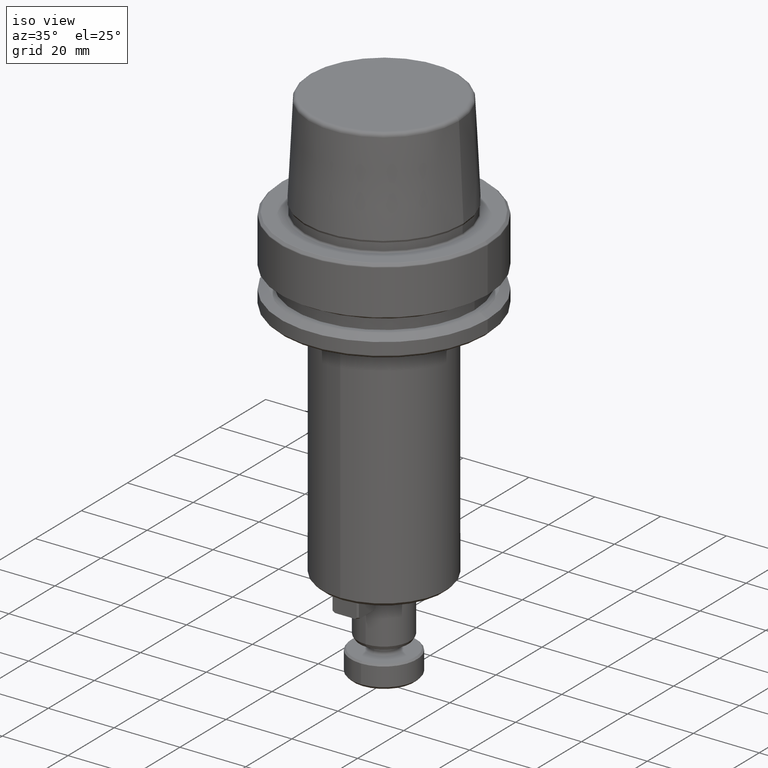
[diagram: clean part render]
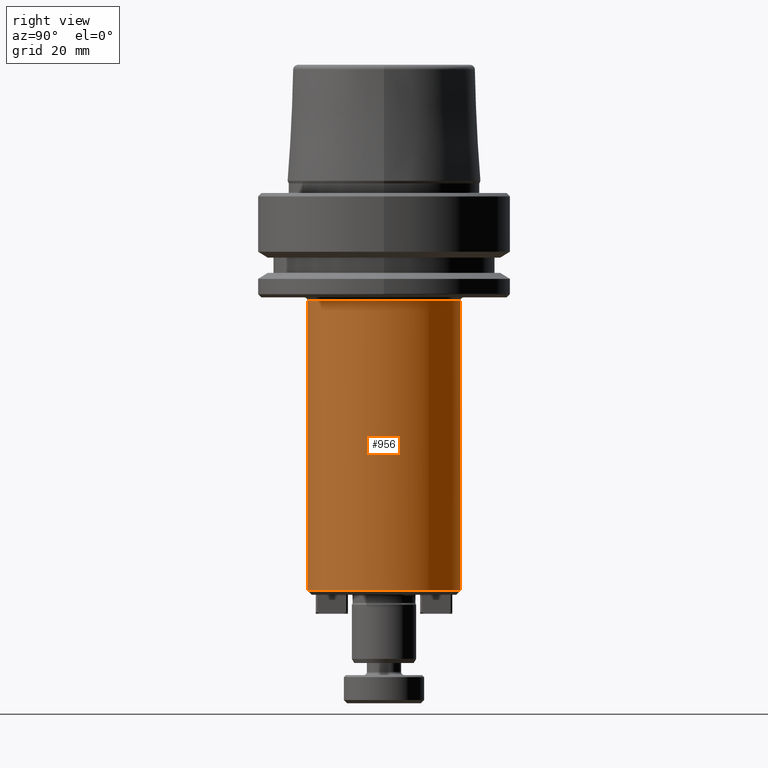
[diagram: tour spotlight — one face highlighted and labeled with its STEP entity id]
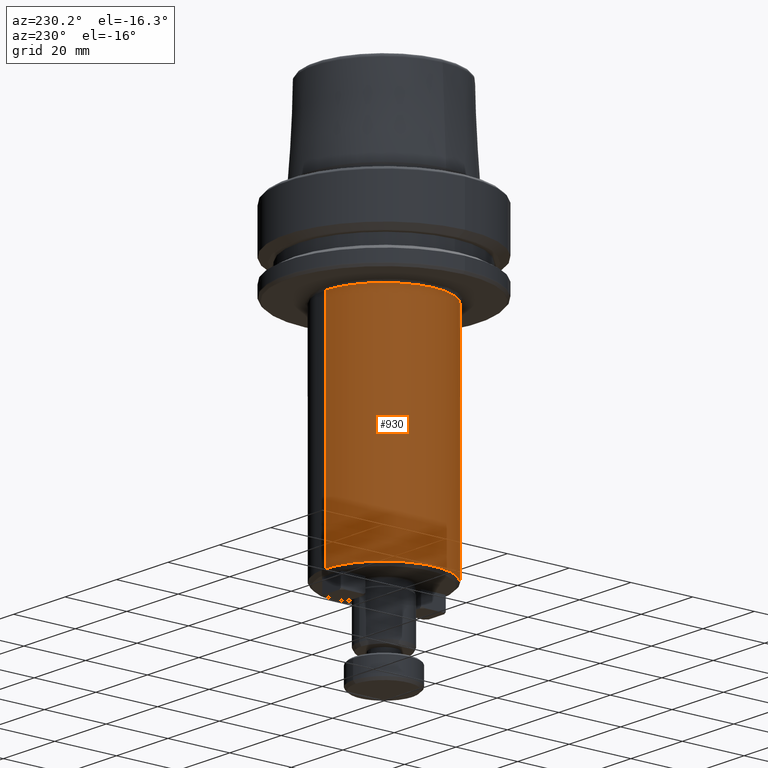
[diagram: tour spotlight — one face highlighted and labeled with its STEP entity id]
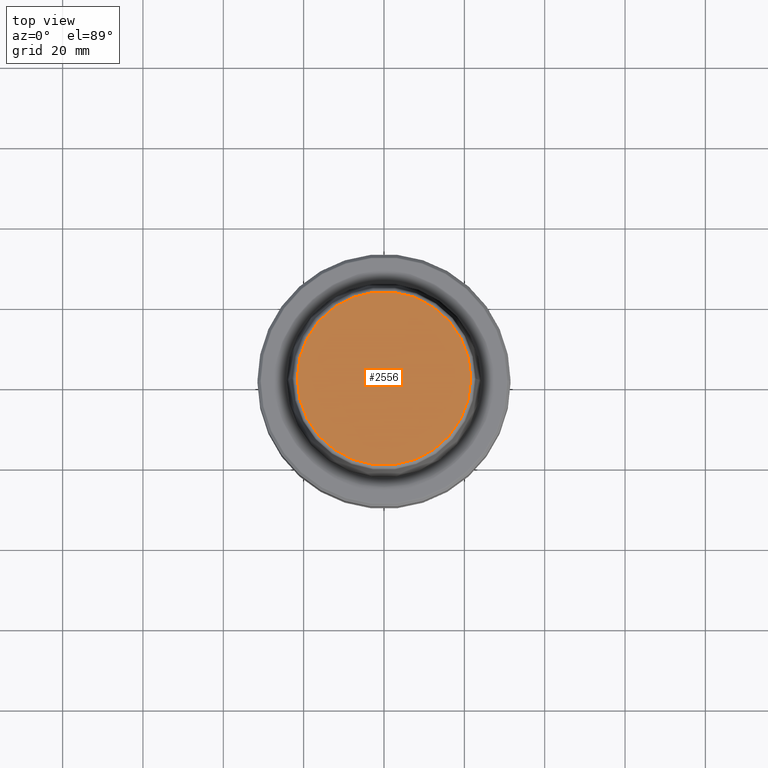
[diagram: tour spotlight — one face highlighted and labeled with its STEP entity id]
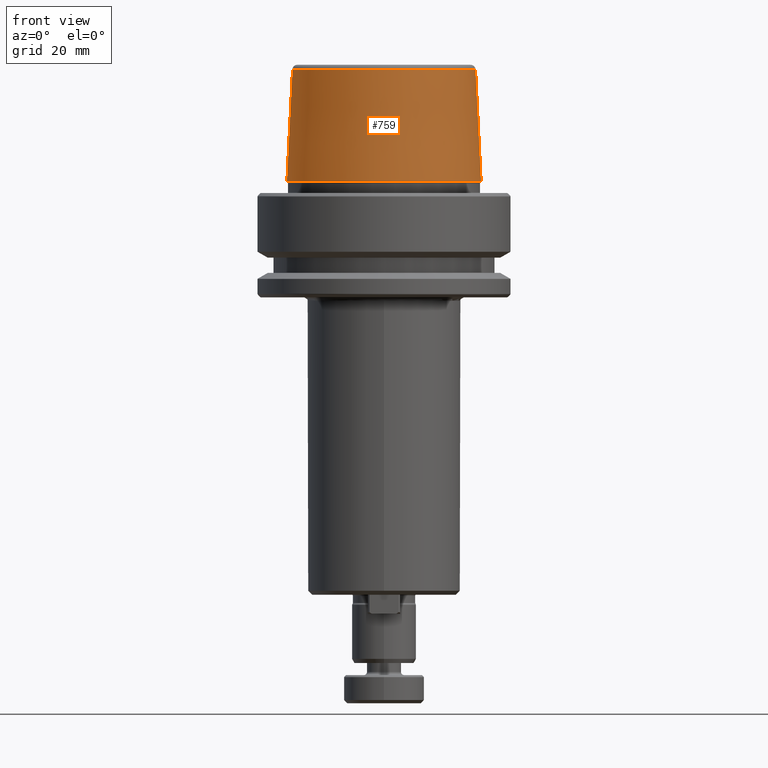
[diagram: tour spotlight — one face highlighted and labeled with its STEP entity id]
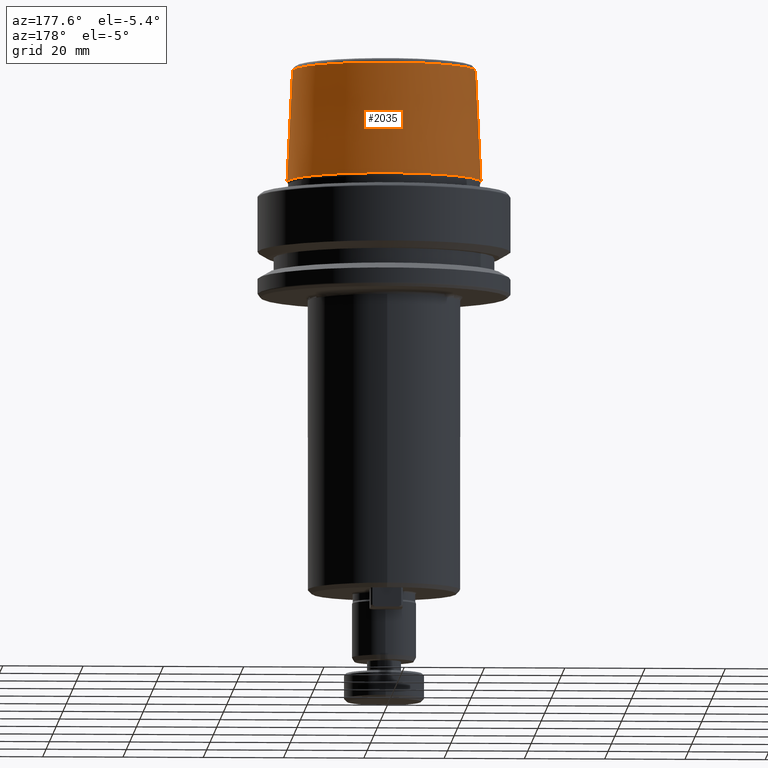
[diagram: tour spotlight — one face highlighted and labeled with its STEP entity id]
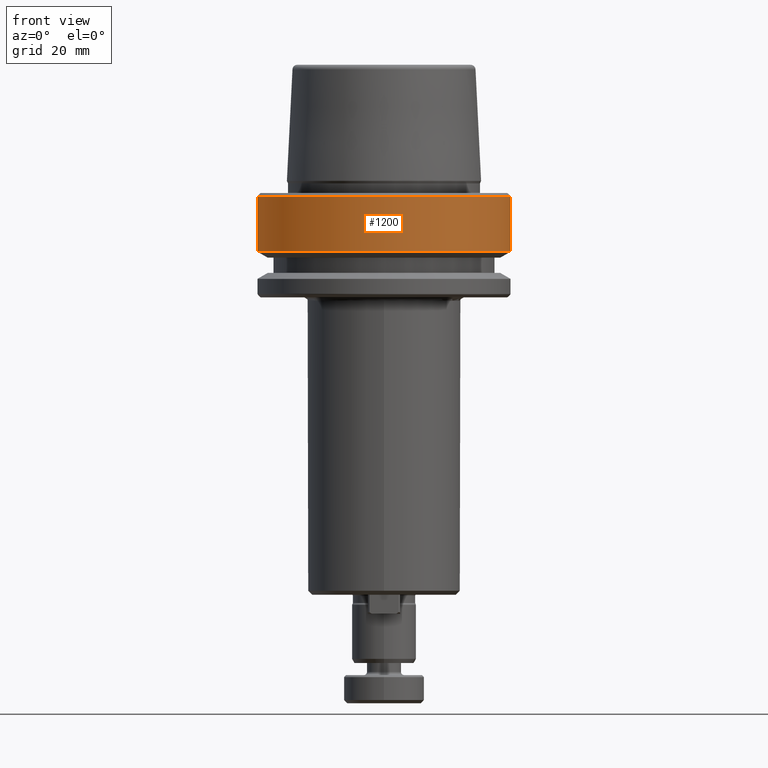
[diagram: tour spotlight — one face highlighted and labeled with its STEP entity id]
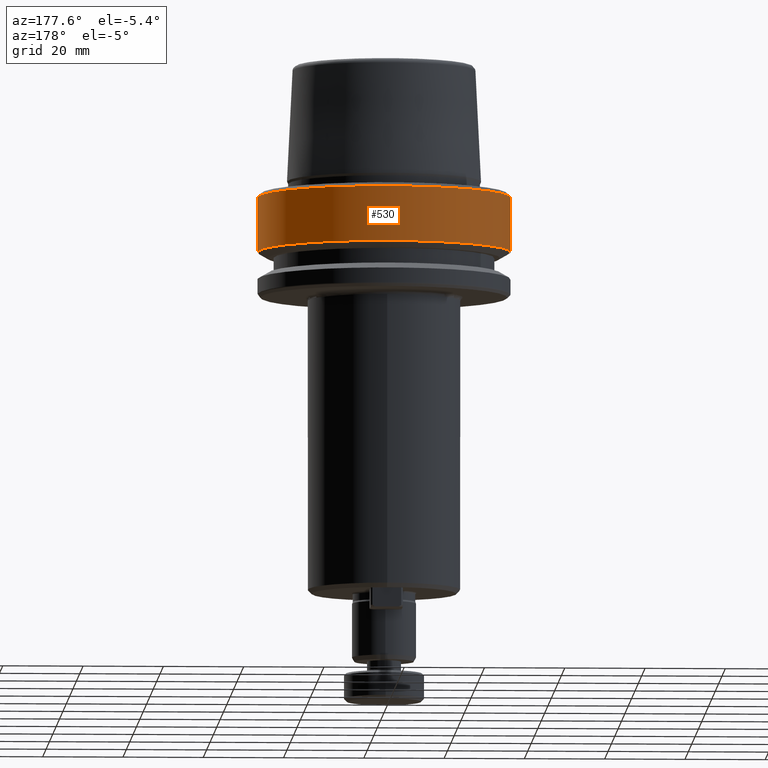
[diagram: tour spotlight — one face highlighted and labeled with its STEP entity id]
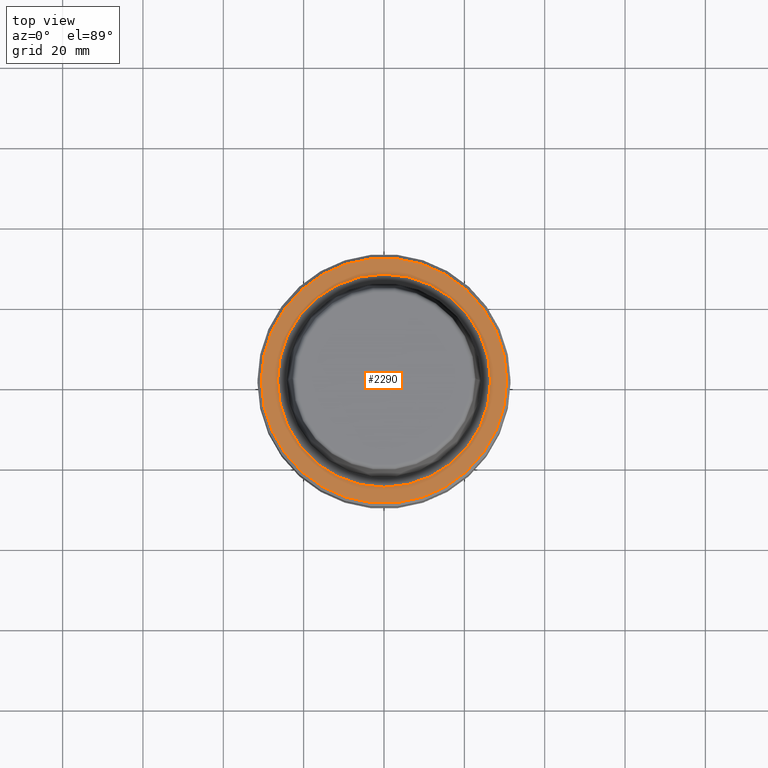
[diagram: tour spotlight — one face highlighted and labeled with its STEP entity id]
A machine part: a face-by-face anatomy tour. The part has 99 B-rep faces; the first image is the clean iso view, then the 8 largest visible faces are spotlighted one at a time (largest first), each with its STEP entity span.

Face 1 — right view, entity #956. In plain terms, the highlighted cylindrical surface (partial cylindrical patch) has radius 19 mm, axis along (-0, 0, -1).
Definition (entity closure, byte-faithful):
#64 = CARTESIAN_POINT ( 'NONE',  ( 0.0000000000000000000, 19.00000000000000700, -117.0000000000000000 ) ) ;
#116 = ORIENTED_EDGE ( 'NONE', *, *, #2378, .T. ) ;
#162 = CIRCLE ( 'NONE', #2687, 19.00000000000000000 ) ;
#195 = EDGE_CURVE ( 'NONE', #1346, #249, #162, .T. ) ;
#249 = VERTEX_POINT ( 'NONE', #2596 ) ;
#400 = VERTEX_POINT ( 'NONE', #1212 ) ;
#422 = AXIS2_PLACEMENT_3D ( 'NONE', #2175, #2057, #2455 ) ;
#434 = DIRECTION ( 'NONE',  ( -0.0000000000000000000, 7.401711423418070600E-017, -1.000000000000000000 ) ) ;
#507 = ORIENTED_EDGE ( 'NONE', *, *, #540, .F. ) ;
#540 = EDGE_CURVE ( 'NONE', #400, #1538, #2073, .T. ) ;
#757 = DIRECTION ( 'NONE',  ( -0.0000000000000000000, 7.401711423418070600E-017, -1.000000000000000000 ) ) ;
#765 = CIRCLE ( 'NONE', #1809, 19.00000000000000000 ) ;
#766 = EDGE_CURVE ( 'NONE', #2383, #1346, #765, .T. ) ;
#768 = CARTESIAN_POINT ( 'NONE',  ( 2.326828918379971000E-015, -18.99999999999999300, -117.0000000000000000 ) ) ;
#882 = VECTOR ( 'NONE', #757, 1000.000000000000000 ) ;
#946 = LINE ( 'NONE', #768, #882 ) ;
#956 = ADVANCED_FACE ( 'NONE', ( #2681 ), #2578, .T. ) ;
#985 = CARTESIAN_POINT ( 'NONE',  ( 0.0000000000000000000, 19.00000000000000000, -26.80000000000000400 ) ) ;
#1167 = VECTOR ( 'NONE', #1388, 1000.000000000000000 ) ;
#1212 = CARTESIAN_POINT ( 'NONE',  ( 0.0000000000000000000, 19.00000000000000700, -98.99999999999998600 ) ) ;
#1280 = CARTESIAN_POINT ( 'NONE',  ( 0.0000000000000000000, 5.921369138734457200E-017, -26.80000000000000400 ) ) ;
#1308 = EDGE_CURVE ( 'NONE', #2383, #400, #2330, .T. ) ;
#1346 = VERTEX_POINT ( 'NONE', #2435 ) ;
#1388 = DIRECTION ( 'NONE',  ( -0.0000000000000000000, 7.401711423418070600E-017, -1.000000000000000000 ) ) ;
#1508 = DIRECTION ( 'NONE',  ( 1.000000000000000000, 0.0000000000000000000, 0.0000000000000000000 ) ) ;
#1538 = VERTEX_POINT ( 'NONE', #2768 ) ;
#1569 = EDGE_LOOP ( 'NONE', ( #2266, #2505, #116, #507, #2520 ) ) ;
#1809 = AXIS2_PLACEMENT_3D ( 'NONE', #1280, #2592, #1508 ) ;
#1906 = DIRECTION ( 'NONE',  ( 1.000000000000000000, 0.0000000000000000000, 0.0000000000000000000 ) ) ;
#1990 = DIRECTION ( 'NONE',  ( 0.0000000000000000000, 1.000000000000000000, 0.0000000000000000000 ) ) ;
#2057 = DIRECTION ( 'NONE',  ( -0.0000000000000000000, 7.401711423418070600E-017, -1.000000000000000000 ) ) ;
#2073 = CIRCLE ( 'NONE', #422, 19.00000000000000000 ) ;
#2175 = CARTESIAN_POINT ( 'NONE',  ( 0.0000000000000000000, 5.403249339095191200E-015, -98.99999999999998600 ) ) ;
#2213 = CARTESIAN_POINT ( 'NONE',  ( 0.0000000000000000000, 6.735557395310445000E-015, -117.0000000000000000 ) ) ;
#2266 = ORIENTED_EDGE ( 'NONE', *, *, #766, .T. ) ;
#2330 = LINE ( 'NONE', #64, #1167 ) ;
#2378 = EDGE_CURVE ( 'NONE', #249, #1538, #946, .T. ) ;
#2383 = VERTEX_POINT ( 'NONE', #985 ) ;
#2386 = CARTESIAN_POINT ( 'NONE',  ( 0.0000000000000000000, 5.921369138734457200E-017, -26.80000000000000400 ) ) ;
#2435 = CARTESIAN_POINT ( 'NONE',  ( 19.00000000000000000, 5.921369138734457200E-017, -26.80000000000000400 ) ) ;
#2455 = DIRECTION ( 'NONE',  ( 0.0000000000000000000, 1.000000000000000000, 0.0000000000000000000 ) ) ;
#2505 = ORIENTED_EDGE ( 'NONE', *, *, #195, .T. ) ;
#2509 = AXIS2_PLACEMENT_3D ( 'NONE', #2213, #434, #1990 ) ;
#2520 = ORIENTED_EDGE ( 'NONE', *, *, #1308, .F. ) ;
#2578 = CYLINDRICAL_SURFACE ( 'NONE', #2509, 19.00000000000000000 ) ;
#2592 = DIRECTION ( 'NONE',  ( 0.0000000000000000000, 0.0000000000000000000, -1.000000000000000000 ) ) ;
#2596 = CARTESIAN_POINT ( 'NONE',  ( 2.326828918379971400E-015, -19.00000000000000000, -26.80000000000000400 ) ) ;
#2681 = FACE_OUTER_BOUND ( 'NONE', #1569, .T. ) ;
#2687 = AXIS2_PLACEMENT_3D ( 'NONE', #2386, #2802, #1906 ) ;
#2768 = CARTESIAN_POINT ( 'NONE',  ( 2.326828918379971000E-015, -18.99999999999999300, -98.99999999999998600 ) ) ;
#2802 = DIRECTION ( 'NONE',  ( 0.0000000000000000000, 0.0000000000000000000, -1.000000000000000000 ) ) ;

Face 2 — auxiliary view, entity #930. In plain terms, the highlighted cylindrical surface (partial cylindrical patch) has radius 19 mm, axis along (-0, 0, -1).
Definition (entity closure, byte-faithful):
#64 = CARTESIAN_POINT ( 'NONE',  ( 0.0000000000000000000, 19.00000000000000700, -117.0000000000000000 ) ) ;
#103 = VERTEX_POINT ( 'NONE', #229 ) ;
#183 = ORIENTED_EDGE ( 'NONE', *, *, #1913, .T. ) ;
#211 = DIRECTION ( 'NONE',  ( 1.000000000000000000, 0.0000000000000000000, 0.0000000000000000000 ) ) ;
#223 = AXIS2_PLACEMENT_3D ( 'NONE', #1784, #494, #2004 ) ;
#229 = CARTESIAN_POINT ( 'NONE',  ( -19.00000000000000000, 2.435028481733209800E-015, -26.80000000000000400 ) ) ;
#249 = VERTEX_POINT ( 'NONE', #2596 ) ;
#375 = EDGE_LOOP ( 'NONE', ( #810, #183, #2608, #451, #1386 ) ) ;
#397 = CIRCLE ( 'NONE', #1208, 19.00000000000000000 ) ;
#400 = VERTEX_POINT ( 'NONE', #1212 ) ;
#451 = ORIENTED_EDGE ( 'NONE', *, *, #1308, .T. ) ;
#469 = CIRCLE ( 'NONE', #1225, 19.00000000000000000 ) ;
#494 = DIRECTION ( 'NONE',  ( 0.0000000000000000000, 0.0000000000000000000, -1.000000000000000000 ) ) ;
#757 = DIRECTION ( 'NONE',  ( -0.0000000000000000000, 7.401711423418070600E-017, -1.000000000000000000 ) ) ;
#768 = CARTESIAN_POINT ( 'NONE',  ( 2.326828918379971000E-015, -18.99999999999999300, -117.0000000000000000 ) ) ;
#810 = ORIENTED_EDGE ( 'NONE', *, *, #2378, .F. ) ;
#882 = VECTOR ( 'NONE', #757, 1000.000000000000000 ) ;
#892 = DIRECTION ( 'NONE',  ( -0.0000000000000000000, 7.401711423418070600E-017, -1.000000000000000000 ) ) ;
#930 = ADVANCED_FACE ( 'NONE', ( #1007 ), #2094, .T. ) ;
#946 = LINE ( 'NONE', #768, #882 ) ;
#985 = CARTESIAN_POINT ( 'NONE',  ( 0.0000000000000000000, 19.00000000000000000, -26.80000000000000400 ) ) ;
#1007 = FACE_OUTER_BOUND ( 'NONE', #375, .T. ) ;
#1167 = VECTOR ( 'NONE', #1388, 1000.000000000000000 ) ;
#1208 = AXIS2_PLACEMENT_3D ( 'NONE', #2800, #1492, #211 ) ;
#1212 = CARTESIAN_POINT ( 'NONE',  ( 0.0000000000000000000, 19.00000000000000700, -98.99999999999998600 ) ) ;
#1225 = AXIS2_PLACEMENT_3D ( 'NONE', #2422, #892, #2200 ) ;
#1299 = CARTESIAN_POINT ( 'NONE',  ( 0.0000000000000000000, 6.735557395310445000E-015, -117.0000000000000000 ) ) ;
#1308 = EDGE_CURVE ( 'NONE', #2383, #400, #2330, .T. ) ;
#1386 = ORIENTED_EDGE ( 'NONE', *, *, #1394, .F. ) ;
#1388 = DIRECTION ( 'NONE',  ( -0.0000000000000000000, 7.401711423418070600E-017, -1.000000000000000000 ) ) ;
#1394 = EDGE_CURVE ( 'NONE', #1538, #400, #469, .T. ) ;
#1492 = DIRECTION ( 'NONE',  ( 0.0000000000000000000, 0.0000000000000000000, -1.000000000000000000 ) ) ;
#1538 = VERTEX_POINT ( 'NONE', #2768 ) ;
#1773 = AXIS2_PLACEMENT_3D ( 'NONE', #1299, #2576, #2180 ) ;
#1784 = CARTESIAN_POINT ( 'NONE',  ( 0.0000000000000000000, 5.921369138734457200E-017, -26.80000000000000400 ) ) ;
#1913 = EDGE_CURVE ( 'NONE', #249, #103, #397, .T. ) ;
#2004 = DIRECTION ( 'NONE',  ( 1.000000000000000000, 0.0000000000000000000, 0.0000000000000000000 ) ) ;
#2094 = CYLINDRICAL_SURFACE ( 'NONE', #1773, 19.00000000000000000 ) ;
#2098 = CIRCLE ( 'NONE', #223, 19.00000000000000000 ) ;
#2180 = DIRECTION ( 'NONE',  ( 0.0000000000000000000, 1.000000000000000000, 0.0000000000000000000 ) ) ;
#2200 = DIRECTION ( 'NONE',  ( 0.0000000000000000000, 1.000000000000000000, 0.0000000000000000000 ) ) ;
#2330 = LINE ( 'NONE', #64, #1167 ) ;
#2378 = EDGE_CURVE ( 'NONE', #249, #1538, #946, .T. ) ;
#2383 = VERTEX_POINT ( 'NONE', #985 ) ;
#2422 = CARTESIAN_POINT ( 'NONE',  ( 0.0000000000000000000, 5.403249339095191200E-015, -98.99999999999998600 ) ) ;
#2576 = DIRECTION ( 'NONE',  ( -0.0000000000000000000, 7.401711423418070600E-017, -1.000000000000000000 ) ) ;
#2596 = CARTESIAN_POINT ( 'NONE',  ( 2.326828918379971400E-015, -19.00000000000000000, -26.80000000000000400 ) ) ;
#2608 = ORIENTED_EDGE ( 'NONE', *, *, #2765, .T. ) ;
#2765 = EDGE_CURVE ( 'NONE', #103, #2383, #2098, .T. ) ;
#2768 = CARTESIAN_POINT ( 'NONE',  ( 2.326828918379971000E-015, -18.99999999999999300, -98.99999999999998600 ) ) ;
#2800 = CARTESIAN_POINT ( 'NONE',  ( 0.0000000000000000000, 5.921369138734457200E-017, -26.80000000000000400 ) ) ;

Face 3 — top view, entity #2556. In plain terms, the highlighted planar face has unit normal (0, 0, -1).
Definition (entity closure, byte-faithful):
#14 = DIRECTION ( 'NONE',  ( -0.0000000000000000000, -0.0000000000000000000, 1.000000000000000000 ) ) ;
#97 = FACE_OUTER_BOUND ( 'NONE', #869, .T. ) ;
#582 = DIRECTION ( 'NONE',  ( -0.0000000000000000000, -0.0000000000000000000, 1.000000000000000000 ) ) ;
#597 = ORIENTED_EDGE ( 'NONE', *, *, #804, .T. ) ;
#610 = DIRECTION ( 'NONE',  ( 0.0000000000000000000, 0.0000000000000000000, -1.000000000000000000 ) ) ;
#619 = DIRECTION ( 'NONE',  ( -1.000000000000000000, 0.0000000000000000000, -0.0000000000000000000 ) ) ;
#628 = CIRCLE ( 'NONE', #846, 21.58108272732117100 ) ;
#685 = AXIS2_PLACEMENT_3D ( 'NONE', #1702, #610, #619 ) ;
#702 = CIRCLE ( 'NONE', #2398, 21.58108272732117100 ) ;
#804 = EDGE_CURVE ( 'NONE', #2253, #2667, #702, .T. ) ;
#846 = AXIS2_PLACEMENT_3D ( 'NONE', #2356, #14, #1303 ) ;
#865 = CARTESIAN_POINT ( 'NONE',  ( -21.58108272732117100, 2.716307157494421400E-015, 31.89999999999999900 ) ) ;
#869 = EDGE_LOOP ( 'NONE', ( #597, #1221 ) ) ;
#1053 = CARTESIAN_POINT ( 'NONE',  ( 0.0000000000000000000, 0.0000000000000000000, 31.89999999999999900 ) ) ;
#1105 = EDGE_CURVE ( 'NONE', #2667, #2253, #628, .T. ) ;
#1221 = ORIENTED_EDGE ( 'NONE', *, *, #1105, .T. ) ;
#1303 = DIRECTION ( 'NONE',  ( 1.000000000000000000, 0.0000000000000000000, 0.0000000000000000000 ) ) ;
#1702 = CARTESIAN_POINT ( 'NONE',  ( 0.0000000000000000000, 0.0000000000000000000, 31.89999999999999900 ) ) ;
#1922 = PLANE ( 'NONE',  #685 ) ;
#2029 = CARTESIAN_POINT ( 'NONE',  ( 21.58108272732117100, 0.0000000000000000000, 31.89999999999999900 ) ) ;
#2134 = DIRECTION ( 'NONE',  ( 1.000000000000000000, 0.0000000000000000000, 0.0000000000000000000 ) ) ;
#2253 = VERTEX_POINT ( 'NONE', #2029 ) ;
#2356 = CARTESIAN_POINT ( 'NONE',  ( 0.0000000000000000000, 0.0000000000000000000, 31.89999999999999900 ) ) ;
#2398 = AXIS2_PLACEMENT_3D ( 'NONE', #1053, #582, #2134 ) ;
#2556 = ADVANCED_FACE ( 'NONE', ( #97 ), #1922, .F. ) ;
#2667 = VERTEX_POINT ( 'NONE', #865 ) ;

Face 4 — front view, entity #759. In plain terms, the highlighted conical surface has half-angle 2.868 deg.
Definition (entity closure, byte-faithful):
#94 = ORIENTED_EDGE ( 'NONE', *, *, #1486, .F. ) ;
#114 = CIRCLE ( 'NONE', #1568, 24.17032625081241900 ) ;
#141 = CARTESIAN_POINT ( 'NONE',  ( -24.17032625081241900, 2.960011267740467600E-015, 3.000000000000002700 ) ) ;
#143 = VERTEX_POINT ( 'NONE', #285 ) ;
#206 = DIRECTION ( 'NONE',  ( -0.05003611051310812000, 0.0000000000000000000, -0.9987474093306675200 ) ) ;
#220 = CARTESIAN_POINT ( 'NONE',  ( 0.0000000000000000000, 0.0000000000000000000, 3.000000000000002700 ) ) ;
#236 = VERTEX_POINT ( 'NONE', #1661 ) ;
#285 = CARTESIAN_POINT ( 'NONE',  ( 24.17032625081241900, 0.0000000000000000000, 3.000000000000002700 ) ) ;
#290 = DIRECTION ( 'NONE',  ( -0.0000000000000000000, -0.0000000000000000000, 1.000000000000000000 ) ) ;
#428 = CIRCLE ( 'NONE', #1590, 22.77957961851797100 ) ;
#572 = EDGE_CURVE ( 'NONE', #640, #143, #114, .T. ) ;
#595 = ORIENTED_EDGE ( 'NONE', *, *, #572, .T. ) ;
#640 = VERTEX_POINT ( 'NONE', #141 ) ;
#661 = VERTEX_POINT ( 'NONE', #1472 ) ;
#759 = ADVANCED_FACE ( 'NONE', ( #835 ), #2440, .T. ) ;
#816 = DIRECTION ( 'NONE',  ( -0.0000000000000000000, -0.0000000000000000000, 1.000000000000000000 ) ) ;
#828 = DIRECTION ( 'NONE',  ( 0.0000000000000000000, 0.0000000000000000000, -1.000000000000000000 ) ) ;
#835 = FACE_OUTER_BOUND ( 'NONE', #2336, .T. ) ;
#893 = LINE ( 'NONE', #2170, #1409 ) ;
#1310 = ORIENTED_EDGE ( 'NONE', *, *, #2181, .F. ) ;
#1409 = VECTOR ( 'NONE', #2377, 1000.000000000000200 ) ;
#1472 = CARTESIAN_POINT ( 'NONE',  ( -22.77957961851797100, 0.0000000000000000000, 30.76004333261571900 ) ) ;
#1486 = EDGE_CURVE ( 'NONE', #236, #143, #893, .T. ) ;
#1494 = VECTOR ( 'NONE', #206, 1000.000000000000200 ) ;
#1523 = AXIS2_PLACEMENT_3D ( 'NONE', #220, #828, #1889 ) ;
#1568 = AXIS2_PLACEMENT_3D ( 'NONE', #2344, #816, #2123 ) ;
#1579 = CARTESIAN_POINT ( 'NONE',  ( 0.0000000000000000000, 0.0000000000000000000, 30.76004333261571900 ) ) ;
#1590 = AXIS2_PLACEMENT_3D ( 'NONE', #1579, #290, #1795 ) ;
#1661 = CARTESIAN_POINT ( 'NONE',  ( 22.77957961851797100, 2.874852597157249900E-015, 30.76004333261571900 ) ) ;
#1748 = ORIENTED_EDGE ( 'NONE', *, *, #2560, .T. ) ;
#1795 = DIRECTION ( 'NONE',  ( 1.000000000000000000, 0.0000000000000000000, 0.0000000000000000000 ) ) ;
#1889 = DIRECTION ( 'NONE',  ( -1.000000000000000000, 0.0000000000000000000, 0.0000000000000000000 ) ) ;
#2123 = DIRECTION ( 'NONE',  ( 1.000000000000000000, 0.0000000000000000000, 0.0000000000000000000 ) ) ;
#2138 = CARTESIAN_POINT ( 'NONE',  ( -24.17032625081241900, 0.0000000000000000000, 3.000000000000002700 ) ) ;
#2170 = CARTESIAN_POINT ( 'NONE',  ( 24.17032625081241900, 2.960011267740467600E-015, 3.000000000000002700 ) ) ;
#2181 = EDGE_CURVE ( 'NONE', #661, #236, #428, .T. ) ;
#2216 = LINE ( 'NONE', #2138, #1494 ) ;
#2336 = EDGE_LOOP ( 'NONE', ( #94, #1310, #1748, #595 ) ) ;
#2344 = CARTESIAN_POINT ( 'NONE',  ( 0.0000000000000000000, 0.0000000000000000000, 3.000000000000002700 ) ) ;
#2377 = DIRECTION ( 'NONE',  ( 0.05003611051310812000, 6.127656258166108900E-018, -0.9987474093306675200 ) ) ;
#2440 = CONICAL_SURFACE ( 'NONE', #1523, 24.17032625081241900, 0.05005701257456005000 ) ;
#2560 = EDGE_CURVE ( 'NONE', #661, #640, #2216, .T. ) ;

Face 5 — auxiliary view, entity #2035. In plain terms, the highlighted conical surface has half-angle 2.868 deg.
Definition (entity closure, byte-faithful):
#15 = CARTESIAN_POINT ( 'NONE',  ( 0.0000000000000000000, 0.0000000000000000000, 3.000000000000002700 ) ) ;
#141 = CARTESIAN_POINT ( 'NONE',  ( -24.17032625081241900, 2.960011267740467600E-015, 3.000000000000002700 ) ) ;
#143 = VERTEX_POINT ( 'NONE', #285 ) ;
#206 = DIRECTION ( 'NONE',  ( -0.05003611051310812000, 0.0000000000000000000, -0.9987474093306675200 ) ) ;
#232 = AXIS2_PLACEMENT_3D ( 'NONE', #968, #2280, #961 ) ;
#236 = VERTEX_POINT ( 'NONE', #1661 ) ;
#285 = CARTESIAN_POINT ( 'NONE',  ( 24.17032625081241900, 0.0000000000000000000, 3.000000000000002700 ) ) ;
#465 = ORIENTED_EDGE ( 'NONE', *, *, #1437, .F. ) ;
#640 = VERTEX_POINT ( 'NONE', #141 ) ;
#641 = DIRECTION ( 'NONE',  ( 0.0000000000000000000, 0.0000000000000000000, -1.000000000000000000 ) ) ;
#661 = VERTEX_POINT ( 'NONE', #1472 ) ;
#700 = EDGE_CURVE ( 'NONE', #143, #640, #1046, .T. ) ;
#731 = ORIENTED_EDGE ( 'NONE', *, *, #700, .T. ) ;
#893 = LINE ( 'NONE', #2170, #1409 ) ;
#961 = DIRECTION ( 'NONE',  ( 1.000000000000000000, 0.0000000000000000000, 0.0000000000000000000 ) ) ;
#968 = CARTESIAN_POINT ( 'NONE',  ( 0.0000000000000000000, 0.0000000000000000000, 3.000000000000002700 ) ) ;
#1046 = CIRCLE ( 'NONE', #232, 24.17032625081241900 ) ;
#1193 = CONICAL_SURFACE ( 'NONE', #2080, 24.17032625081241900, 0.05005701257456005000 ) ;
#1263 = FACE_OUTER_BOUND ( 'NONE', #1966, .T. ) ;
#1409 = VECTOR ( 'NONE', #2377, 1000.000000000000200 ) ;
#1437 = EDGE_CURVE ( 'NONE', #236, #661, #2575, .T. ) ;
#1472 = CARTESIAN_POINT ( 'NONE',  ( -22.77957961851797100, 0.0000000000000000000, 30.76004333261571900 ) ) ;
#1486 = EDGE_CURVE ( 'NONE', #236, #143, #893, .T. ) ;
#1494 = VECTOR ( 'NONE', #206, 1000.000000000000200 ) ;
#1574 = ORIENTED_EDGE ( 'NONE', *, *, #1486, .T. ) ;
#1661 = CARTESIAN_POINT ( 'NONE',  ( 22.77957961851797100, 2.874852597157249900E-015, 30.76004333261571900 ) ) ;
#1733 = DIRECTION ( 'NONE',  ( -1.000000000000000000, 0.0000000000000000000, 0.0000000000000000000 ) ) ;
#1799 = DIRECTION ( 'NONE',  ( -0.0000000000000000000, -0.0000000000000000000, 1.000000000000000000 ) ) ;
#1966 = EDGE_LOOP ( 'NONE', ( #465, #1574, #731, #2279 ) ) ;
#2035 = ADVANCED_FACE ( 'NONE', ( #1263 ), #1193, .T. ) ;
#2080 = AXIS2_PLACEMENT_3D ( 'NONE', #15, #641, #1733 ) ;
#2138 = CARTESIAN_POINT ( 'NONE',  ( -24.17032625081241900, 0.0000000000000000000, 3.000000000000002700 ) ) ;
#2170 = CARTESIAN_POINT ( 'NONE',  ( 24.17032625081241900, 2.960011267740467600E-015, 3.000000000000002700 ) ) ;
#2216 = LINE ( 'NONE', #2138, #1494 ) ;
#2279 = ORIENTED_EDGE ( 'NONE', *, *, #2560, .F. ) ;
#2280 = DIRECTION ( 'NONE',  ( -0.0000000000000000000, -0.0000000000000000000, 1.000000000000000000 ) ) ;
#2377 = DIRECTION ( 'NONE',  ( 0.05003611051310812000, 6.127656258166108900E-018, -0.9987474093306675200 ) ) ;
#2442 = CARTESIAN_POINT ( 'NONE',  ( 0.0000000000000000000, 0.0000000000000000000, 30.76004333261571900 ) ) ;
#2552 = AXIS2_PLACEMENT_3D ( 'NONE', #2442, #1799, #2719 ) ;
#2560 = EDGE_CURVE ( 'NONE', #661, #640, #2216, .T. ) ;
#2575 = CIRCLE ( 'NONE', #2552, 22.77957961851797100 ) ;
#2719 = DIRECTION ( 'NONE',  ( 1.000000000000000000, 0.0000000000000000000, 0.0000000000000000000 ) ) ;

Face 6 — front view, entity #1200. In plain terms, the highlighted cylindrical surface (partial cylindrical patch) has radius 31.5 mm, axis along (-0, -0, 1).
Definition (entity closure, byte-faithful):
#112 = CARTESIAN_POINT ( 'NONE',  ( 31.50000000000000000, 0.0000000000000000000, 78.96908074195309300 ) ) ;
#133 = VERTEX_POINT ( 'NONE', #2522 ) ;
#200 = CIRCLE ( 'NONE', #2675, 31.50000000000000000 ) ;
#328 = DIRECTION ( 'NONE',  ( 1.000000000000000000, 0.0000000000000000000, 0.0000000000000000000 ) ) ;
#343 = VECTOR ( 'NONE', #1209, 1000.000000000000000 ) ;
#448 = DIRECTION ( 'NONE',  ( -0.0000000000000000000, -0.0000000000000000000, 1.000000000000000000 ) ) ;
#464 = ORIENTED_EDGE ( 'NONE', *, *, #740, .T. ) ;
#466 = DIRECTION ( 'NONE',  ( -0.0000000000000000000, -0.0000000000000000000, 1.000000000000000000 ) ) ;
#590 = CARTESIAN_POINT ( 'NONE',  ( 31.50000000000000000, 0.0000000000000000000, -14.62250092524070100 ) ) ;
#652 = VERTEX_POINT ( 'NONE', #2752 ) ;
#740 = EDGE_CURVE ( 'NONE', #1559, #2115, #1554, .T. ) ;
#793 = CYLINDRICAL_SURFACE ( 'NONE', #2452, 31.50000000000000000 ) ;
#974 = AXIS2_PLACEMENT_3D ( 'NONE', #1729, #448, #1946 ) ;
#1096 = EDGE_LOOP ( 'NONE', ( #2370, #2783, #464, #1162 ) ) ;
#1162 = ORIENTED_EDGE ( 'NONE', *, *, #2633, .F. ) ;
#1200 = ADVANCED_FACE ( 'NONE', ( #2539 ), #793, .T. ) ;
#1209 = DIRECTION ( 'NONE',  ( -0.0000000000000000000, -0.0000000000000000000, 1.000000000000000000 ) ) ;
#1312 = VECTOR ( 'NONE', #1457, 1000.000000000000000 ) ;
#1347 = CARTESIAN_POINT ( 'NONE',  ( 31.50000000000000700, 0.0000000000000000000, -0.9656854249492363700 ) ) ;
#1438 = DIRECTION ( 'NONE',  ( -0.0000000000000000000, -0.0000000000000000000, 1.000000000000000000 ) ) ;
#1457 = DIRECTION ( 'NONE',  ( -0.0000000000000000000, -0.0000000000000000000, 1.000000000000000000 ) ) ;
#1554 = LINE ( 'NONE', #112, #343 ) ;
#1559 = VERTEX_POINT ( 'NONE', #590 ) ;
#1719 = EDGE_CURVE ( 'NONE', #652, #133, #1880, .T. ) ;
#1729 = CARTESIAN_POINT ( 'NONE',  ( 0.0000000000000000000, 0.0000000000000000000, -0.9656854249492363700 ) ) ;
#1751 = CARTESIAN_POINT ( 'NONE',  ( 0.0000000000000000000, 0.0000000000000000000, -14.62250092524070100 ) ) ;
#1880 = LINE ( 'NONE', #2572, #1312 ) ;
#1946 = DIRECTION ( 'NONE',  ( 1.000000000000000000, 0.0000000000000000000, 0.0000000000000000000 ) ) ;
#1969 = DIRECTION ( 'NONE',  ( 1.000000000000000000, 0.0000000000000000000, 0.0000000000000000000 ) ) ;
#2053 = EDGE_CURVE ( 'NONE', #652, #1559, #200, .T. ) ;
#2115 = VERTEX_POINT ( 'NONE', #1347 ) ;
#2221 = CARTESIAN_POINT ( 'NONE',  ( 0.0000000000000000000, 0.0000000000000000000, 78.96908074195309300 ) ) ;
#2370 = ORIENTED_EDGE ( 'NONE', *, *, #1719, .F. ) ;
#2452 = AXIS2_PLACEMENT_3D ( 'NONE', #2221, #1438, #328 ) ;
#2517 = CIRCLE ( 'NONE', #974, 31.50000000000000700 ) ;
#2522 = CARTESIAN_POINT ( 'NONE',  ( -31.50000000000000700, 3.857637417314163500E-015, -0.9656854249492363700 ) ) ;
#2539 = FACE_OUTER_BOUND ( 'NONE', #1096, .T. ) ;
#2572 = CARTESIAN_POINT ( 'NONE',  ( -31.50000000000000000, 3.857637417314162700E-015, 78.96908074195309300 ) ) ;
#2633 = EDGE_CURVE ( 'NONE', #133, #2115, #2517, .T. ) ;
#2675 = AXIS2_PLACEMENT_3D ( 'NONE', #1751, #466, #1969 ) ;
#2752 = CARTESIAN_POINT ( 'NONE',  ( -31.50000000000000000, 3.857637417314162700E-015, -14.62250092524070100 ) ) ;
#2783 = ORIENTED_EDGE ( 'NONE', *, *, #2053, .T. ) ;

Face 7 — auxiliary view, entity #530. In plain terms, the highlighted cylindrical surface (partial cylindrical patch) has radius 31.5 mm, axis along (-0, -0, 1).
Definition (entity closure, byte-faithful):
#99 = EDGE_CURVE ( 'NONE', #2115, #133, #283, .T. ) ;
#112 = CARTESIAN_POINT ( 'NONE',  ( 31.50000000000000000, 0.0000000000000000000, 78.96908074195309300 ) ) ;
#133 = VERTEX_POINT ( 'NONE', #2522 ) ;
#245 = DIRECTION ( 'NONE',  ( -0.0000000000000000000, -0.0000000000000000000, 1.000000000000000000 ) ) ;
#283 = CIRCLE ( 'NONE', #1082, 31.50000000000000700 ) ;
#343 = VECTOR ( 'NONE', #1209, 1000.000000000000000 ) ;
#354 = CYLINDRICAL_SURFACE ( 'NONE', #697, 31.50000000000000000 ) ;
#374 = DIRECTION ( 'NONE',  ( -0.0000000000000000000, -0.0000000000000000000, 1.000000000000000000 ) ) ;
#530 = ADVANCED_FACE ( 'NONE', ( #1501 ), #354, .T. ) ;
#590 = CARTESIAN_POINT ( 'NONE',  ( 31.50000000000000000, 0.0000000000000000000, -14.62250092524070100 ) ) ;
#652 = VERTEX_POINT ( 'NONE', #2752 ) ;
#664 = ORIENTED_EDGE ( 'NONE', *, *, #740, .F. ) ;
#697 = AXIS2_PLACEMENT_3D ( 'NONE', #1522, #2247, #2005 ) ;
#708 = ORIENTED_EDGE ( 'NONE', *, *, #99, .F. ) ;
#740 = EDGE_CURVE ( 'NONE', #1559, #2115, #1554, .T. ) ;
#906 = CIRCLE ( 'NONE', #1273, 31.50000000000000000 ) ;
#981 = DIRECTION ( 'NONE',  ( 1.000000000000000000, 0.0000000000000000000, 0.0000000000000000000 ) ) ;
#1082 = AXIS2_PLACEMENT_3D ( 'NONE', #2340, #374, #981 ) ;
#1209 = DIRECTION ( 'NONE',  ( -0.0000000000000000000, -0.0000000000000000000, 1.000000000000000000 ) ) ;
#1273 = AXIS2_PLACEMENT_3D ( 'NONE', #1526, #245, #1738 ) ;
#1312 = VECTOR ( 'NONE', #1457, 1000.000000000000000 ) ;
#1347 = CARTESIAN_POINT ( 'NONE',  ( 31.50000000000000700, 0.0000000000000000000, -0.9656854249492363700 ) ) ;
#1452 = ORIENTED_EDGE ( 'NONE', *, *, #2658, .T. ) ;
#1457 = DIRECTION ( 'NONE',  ( -0.0000000000000000000, -0.0000000000000000000, 1.000000000000000000 ) ) ;
#1501 = FACE_OUTER_BOUND ( 'NONE', #1950, .T. ) ;
#1522 = CARTESIAN_POINT ( 'NONE',  ( 0.0000000000000000000, 0.0000000000000000000, 78.96908074195309300 ) ) ;
#1526 = CARTESIAN_POINT ( 'NONE',  ( 0.0000000000000000000, 0.0000000000000000000, -14.62250092524070100 ) ) ;
#1554 = LINE ( 'NONE', #112, #343 ) ;
#1559 = VERTEX_POINT ( 'NONE', #590 ) ;
#1719 = EDGE_CURVE ( 'NONE', #652, #133, #1880, .T. ) ;
#1738 = DIRECTION ( 'NONE',  ( 1.000000000000000000, 0.0000000000000000000, 0.0000000000000000000 ) ) ;
#1868 = ORIENTED_EDGE ( 'NONE', *, *, #1719, .T. ) ;
#1880 = LINE ( 'NONE', #2572, #1312 ) ;
#1950 = EDGE_LOOP ( 'NONE', ( #1452, #1868, #708, #664 ) ) ;
#2005 = DIRECTION ( 'NONE',  ( 1.000000000000000000, 0.0000000000000000000, 0.0000000000000000000 ) ) ;
#2115 = VERTEX_POINT ( 'NONE', #1347 ) ;
#2247 = DIRECTION ( 'NONE',  ( -0.0000000000000000000, -0.0000000000000000000, 1.000000000000000000 ) ) ;
#2340 = CARTESIAN_POINT ( 'NONE',  ( 0.0000000000000000000, 0.0000000000000000000, -0.9656854249492363700 ) ) ;
#2522 = CARTESIAN_POINT ( 'NONE',  ( -31.50000000000000700, 3.857637417314163500E-015, -0.9656854249492363700 ) ) ;
#2572 = CARTESIAN_POINT ( 'NONE',  ( -31.50000000000000000, 3.857637417314162700E-015, 78.96908074195309300 ) ) ;
#2658 = EDGE_CURVE ( 'NONE', #1559, #652, #906, .T. ) ;
#2752 = CARTESIAN_POINT ( 'NONE',  ( -31.50000000000000000, 3.857637417314162700E-015, -14.62250092524070100 ) ) ;

Face 8 — top view, entity #2290. In plain terms, the highlighted planar face has unit normal (0, 0, -1).
Definition (entity closure, byte-faithful):
#96 = DIRECTION ( 'NONE',  ( 1.000000000000000000, 0.0000000000000000000, 0.0000000000000000000 ) ) ;
#136 = CARTESIAN_POINT ( 'NONE',  ( -30.53431457505076100, 3.756694181974138600E-015, 0.0000000000000000000 ) ) ;
#170 = DIRECTION ( 'NONE',  ( 1.000000000000000000, 0.0000000000000000000, 0.0000000000000000000 ) ) ;
#366 = AXIS2_PLACEMENT_3D ( 'NONE', #2478, #2256, #96 ) ;
#383 = CARTESIAN_POINT ( 'NONE',  ( 0.0000000000000000000, 0.0000000000000000000, 0.0000000000000000000 ) ) ;
#411 = CARTESIAN_POINT ( 'NONE',  ( 0.0000000000000000000, 0.0000000000000000000, 0.0000000000000000000 ) ) ;
#447 = AXIS2_PLACEMENT_3D ( 'NONE', #1979, #678, #2201 ) ;
#539 = CIRCLE ( 'NONE', #2451, 26.52499999999999900 ) ;
#625 = EDGE_CURVE ( 'NONE', #1329, #2676, #539, .T. ) ;
#658 = ORIENTED_EDGE ( 'NONE', *, *, #625, .F. ) ;
#678 = DIRECTION ( 'NONE',  ( -0.0000000000000000000, -0.0000000000000000000, 1.000000000000000000 ) ) ;
#705 = EDGE_CURVE ( 'NONE', #2676, #1329, #2132, .T. ) ;
#738 = PLANE ( 'NONE',  #2769 ) ;
#1180 = DIRECTION ( 'NONE',  ( -1.000000000000000000, 0.0000000000000000000, -0.0000000000000000000 ) ) ;
#1329 = VERTEX_POINT ( 'NONE', #2263 ) ;
#1414 = AXIS2_PLACEMENT_3D ( 'NONE', #411, #1694, #2793 ) ;
#1648 = VERTEX_POINT ( 'NONE', #136 ) ;
#1665 = DIRECTION ( 'NONE',  ( -0.0000000000000000000, -0.0000000000000000000, 1.000000000000000000 ) ) ;
#1667 = FACE_BOUND ( 'NONE', #2530, .T. ) ;
#1687 = EDGE_CURVE ( 'NONE', #2105, #1648, #1949, .T. ) ;
#1694 = DIRECTION ( 'NONE',  ( -0.0000000000000000000, -0.0000000000000000000, 1.000000000000000000 ) ) ;
#1736 = FACE_OUTER_BOUND ( 'NONE', #1982, .T. ) ;
#1877 = ORIENTED_EDGE ( 'NONE', *, *, #705, .F. ) ;
#1949 = CIRCLE ( 'NONE', #1414, 30.53431457505076100 ) ;
#1979 = CARTESIAN_POINT ( 'NONE',  ( 0.0000000000000000000, 0.0000000000000000000, 0.0000000000000000000 ) ) ;
#1982 = EDGE_LOOP ( 'NONE', ( #2750, #2557 ) ) ;
#1986 = CARTESIAN_POINT ( 'NONE',  ( 30.53431457505076100, 0.0000000000000000000, 0.0000000000000000000 ) ) ;
#2065 = EDGE_CURVE ( 'NONE', #1648, #2105, #2285, .T. ) ;
#2105 = VERTEX_POINT ( 'NONE', #1986 ) ;
#2132 = CIRCLE ( 'NONE', #366, 26.52499999999999900 ) ;
#2201 = DIRECTION ( 'NONE',  ( 1.000000000000000000, 0.0000000000000000000, 0.0000000000000000000 ) ) ;
#2256 = DIRECTION ( 'NONE',  ( -0.0000000000000000000, -0.0000000000000000000, 1.000000000000000000 ) ) ;
#2263 = CARTESIAN_POINT ( 'NONE',  ( -26.52499999999999900, 3.248375634738354300E-015, 0.0000000000000000000 ) ) ;
#2270 = CARTESIAN_POINT ( 'NONE',  ( 0.0000000000000000000, 26.52499999999999900, -1.111307226797642000E-015 ) ) ;
#2285 = CIRCLE ( 'NONE', #447, 30.53431457505076100 ) ;
#2290 = ADVANCED_FACE ( 'NONE', ( #1667, #1736 ), #738, .F. ) ;
#2401 = CARTESIAN_POINT ( 'NONE',  ( 26.52499999999999900, 0.0000000000000000000, 0.0000000000000000000 ) ) ;
#2451 = AXIS2_PLACEMENT_3D ( 'NONE', #383, #1665, #170 ) ;
#2478 = CARTESIAN_POINT ( 'NONE',  ( 0.0000000000000000000, 0.0000000000000000000, 0.0000000000000000000 ) ) ;
#2485 = DIRECTION ( 'NONE',  ( 0.0000000000000000000, 0.0000000000000000000, -1.000000000000000000 ) ) ;
#2530 = EDGE_LOOP ( 'NONE', ( #1877, #658 ) ) ;
#2557 = ORIENTED_EDGE ( 'NONE', *, *, #2065, .T. ) ;
#2676 = VERTEX_POINT ( 'NONE', #2401 ) ;
#2750 = ORIENTED_EDGE ( 'NONE', *, *, #1687, .T. ) ;
#2769 = AXIS2_PLACEMENT_3D ( 'NONE', #2270, #2485, #1180 ) ;
#2793 = DIRECTION ( 'NONE',  ( 1.000000000000000000, 0.0000000000000000000, 0.0000000000000000000 ) ) ;